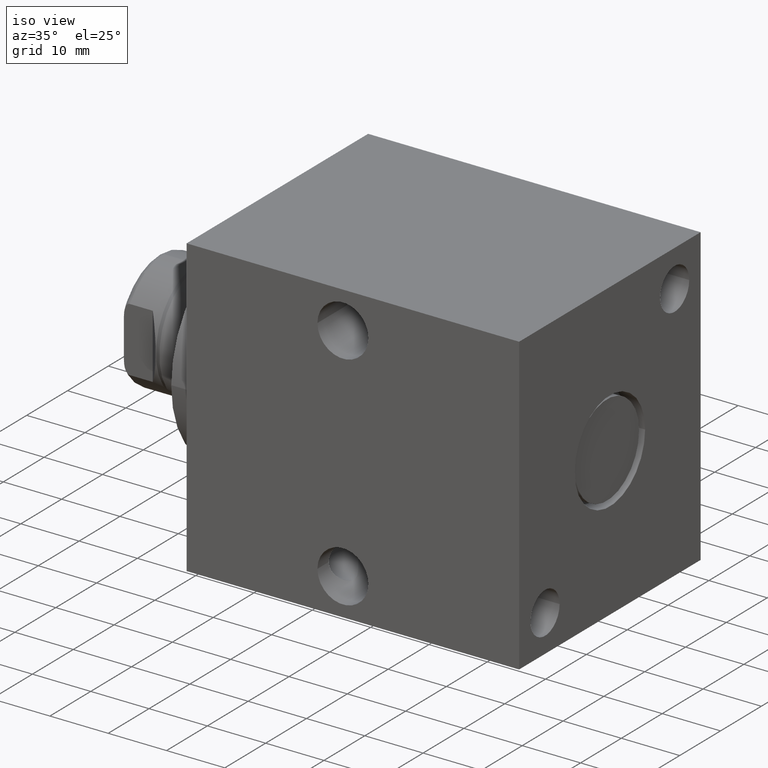
[diagram: clean part render]
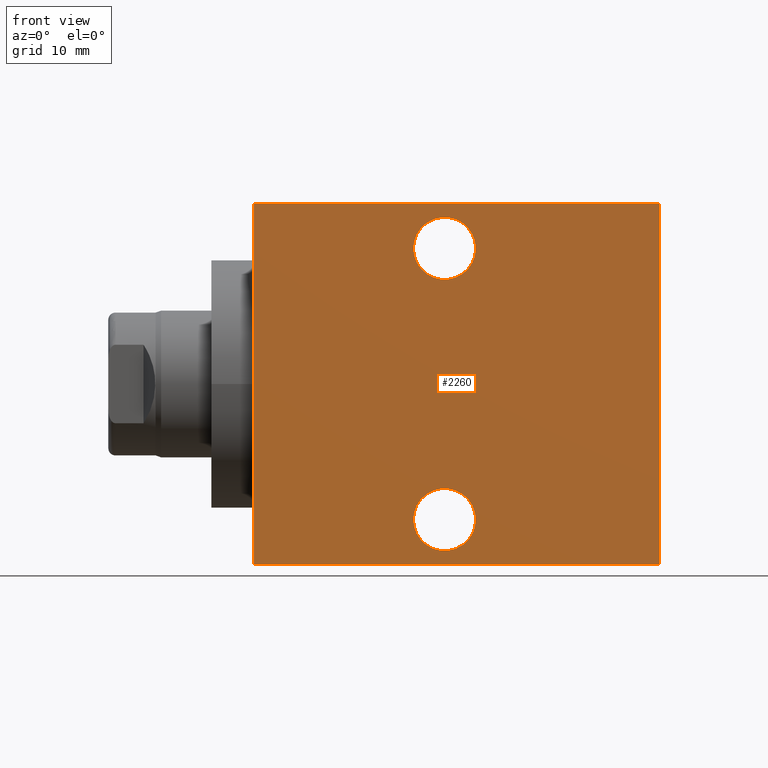
[diagram: tour spotlight — one face highlighted and labeled with its STEP entity id]
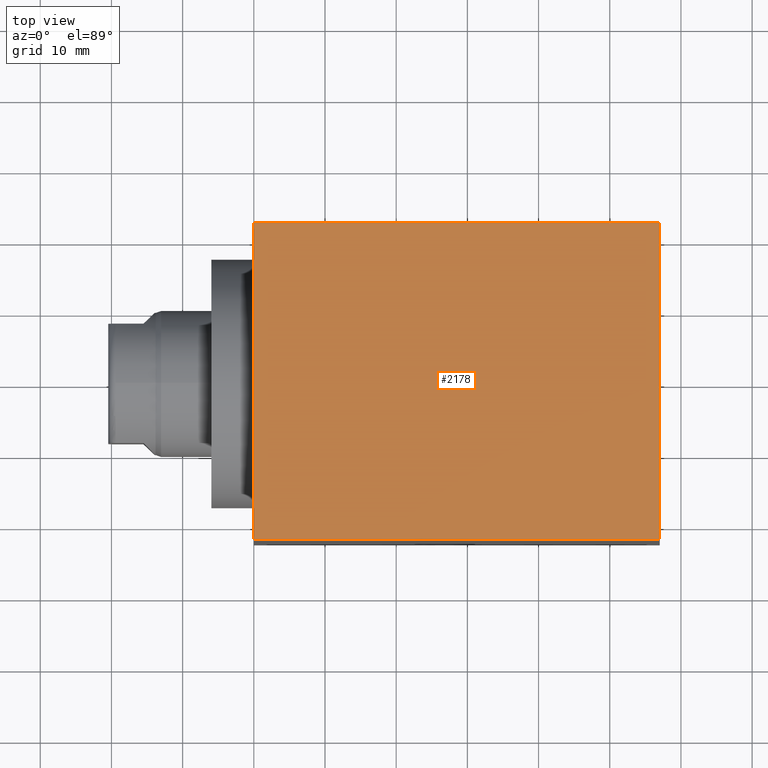
[diagram: tour spotlight — one face highlighted and labeled with its STEP entity id]
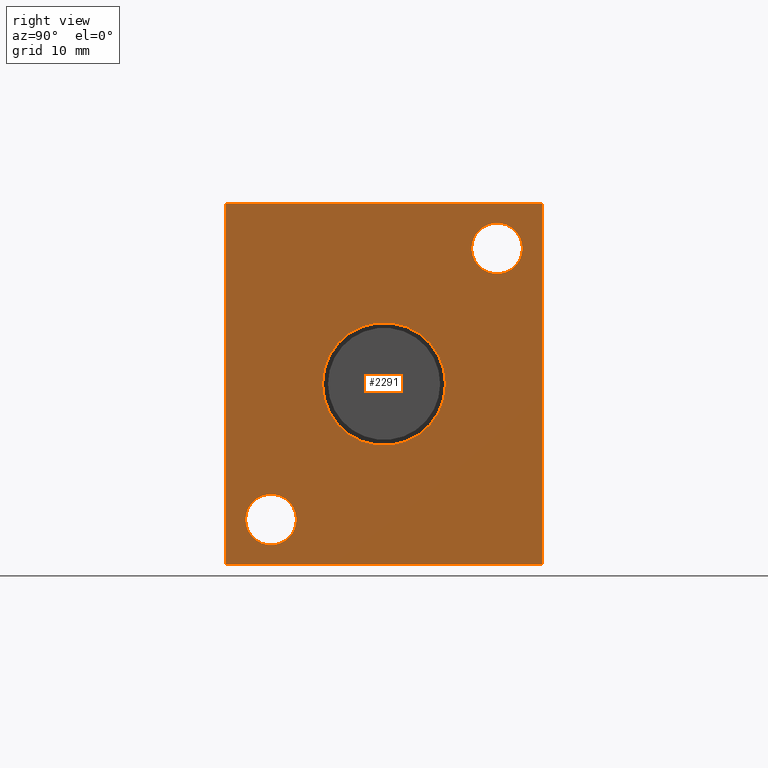
[diagram: tour spotlight — one face highlighted and labeled with its STEP entity id]
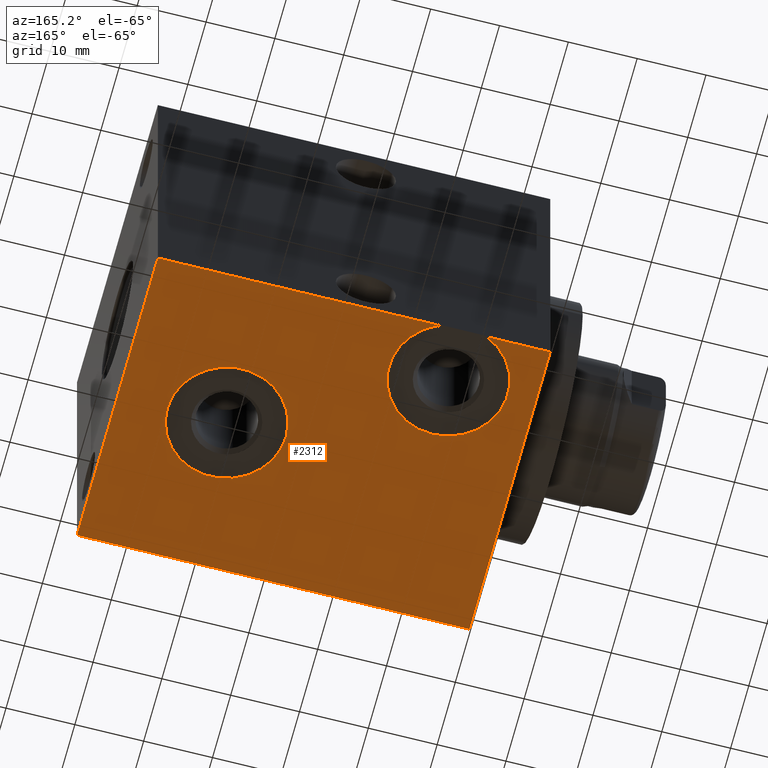
[diagram: tour spotlight — one face highlighted and labeled with its STEP entity id]
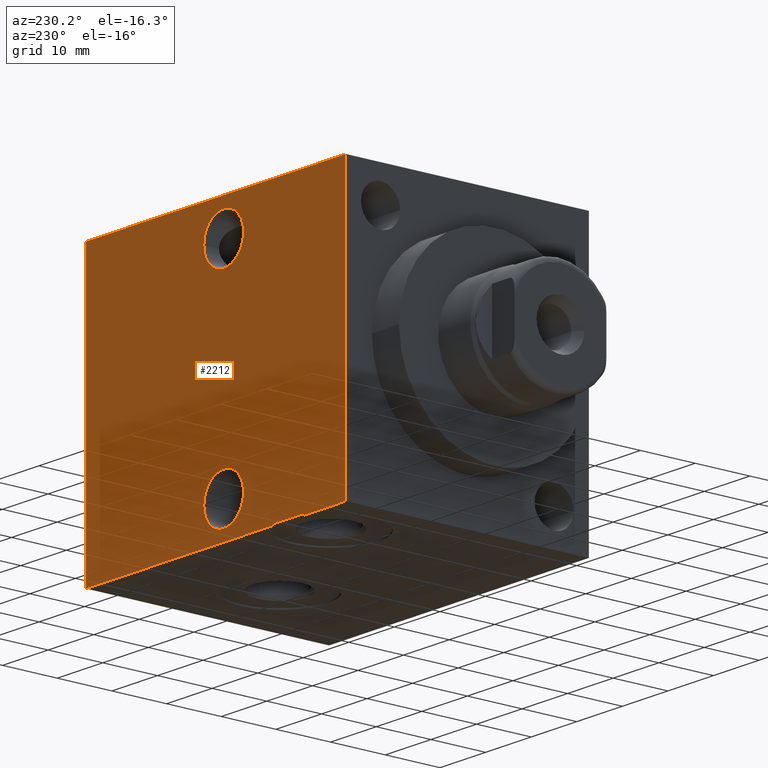
[diagram: tour spotlight — one face highlighted and labeled with its STEP entity id]
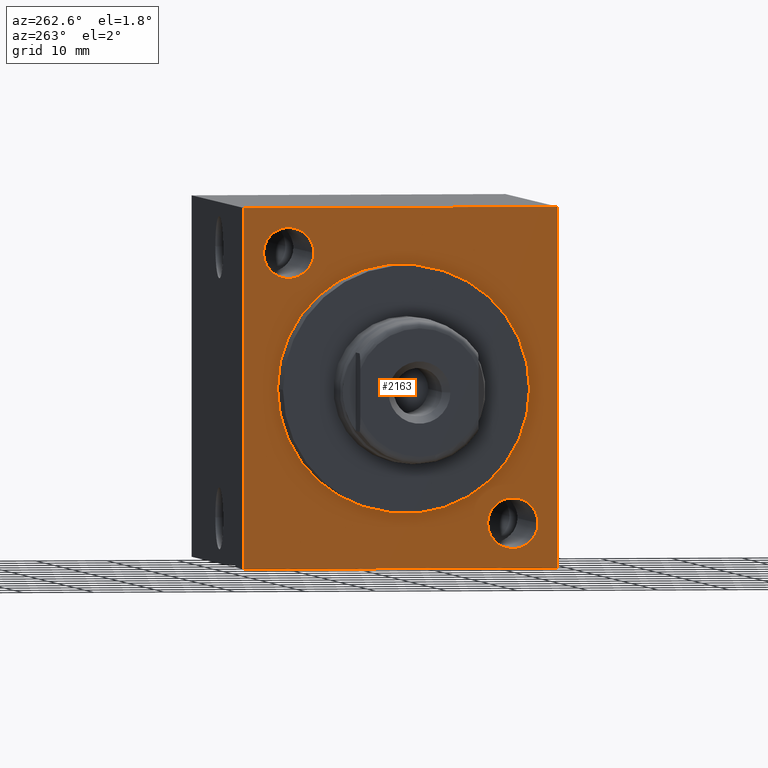
[diagram: tour spotlight — one face highlighted and labeled with its STEP entity id]
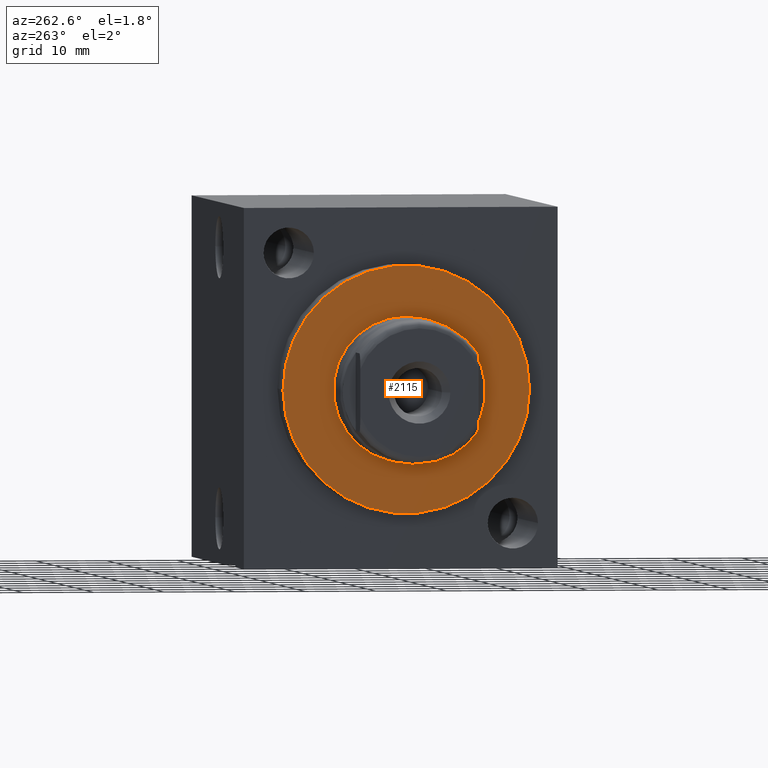
[diagram: tour spotlight — one face highlighted and labeled with its STEP entity id]
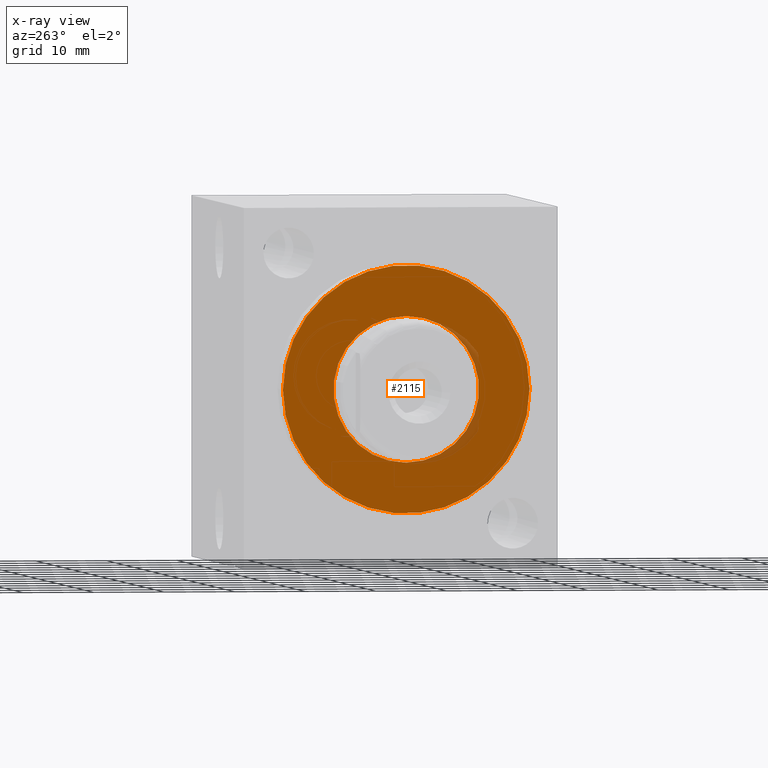
[diagram: x-ray of the same camera — body ghosted, this tour face saturated]
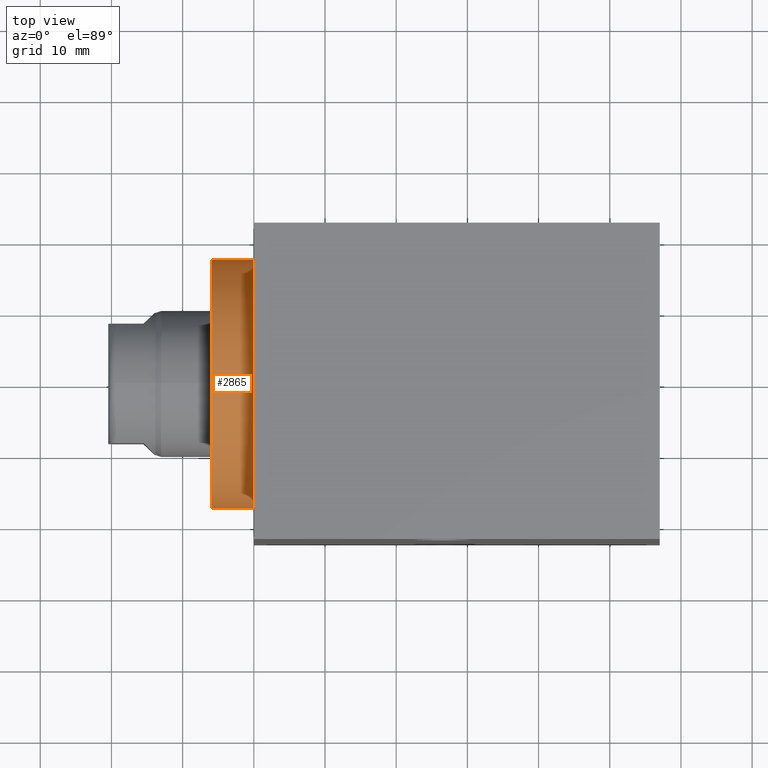
[diagram: tour spotlight — one face highlighted and labeled with its STEP entity id]
A machine part: a face-by-face anatomy tour. The part has 75 B-rep faces; the first image is the clean iso view, then the 8 largest visible faces are spotlighted one at a time (largest first), each with its STEP entity span.

Face 1 — front view, entity #2260. In plain terms, the highlighted planar face has unit normal (0, -1, 0).
Definition (entity closure, byte-faithful):
#506=DIRECTION('',(0.E0,0.E0,-1.E0));
#507=VECTOR('',#506,5.08E1);
#508=CARTESIAN_POINT('',(0.E0,-2.2225E1,2.54E1));
#509=LINE('',#508,#507);
#663=DIRECTION('',(1.E0,0.E0,0.E0));
#664=VECTOR('',#663,5.7023E1);
#665=CARTESIAN_POINT('',(0.E0,-2.2225E1,2.54E1));
#666=LINE('',#665,#664);
#670=CARTESIAN_POINT('',(2.6797E1,-2.2225E1,1.905E1));
#671=DIRECTION('',(0.E0,-1.E0,0.E0));
#672=DIRECTION('',(1.E0,0.E0,0.E0));
#673=AXIS2_PLACEMENT_3D('',#670,#671,#672);
#678=CARTESIAN_POINT('',(2.6797E1,-2.2225E1,1.905E1));
#679=DIRECTION('',(0.E0,-1.E0,0.E0));
#680=DIRECTION('',(-1.E0,0.E0,0.E0));
#681=AXIS2_PLACEMENT_3D('',#678,#679,#680);
#686=CARTESIAN_POINT('',(2.6797E1,-2.2225E1,-1.905E1));
#687=DIRECTION('',(0.E0,-1.E0,0.E0));
#688=DIRECTION('',(1.E0,0.E0,0.E0));
#689=AXIS2_PLACEMENT_3D('',#686,#687,#688);
#694=CARTESIAN_POINT('',(2.6797E1,-2.2225E1,-1.905E1));
#695=DIRECTION('',(0.E0,-1.E0,0.E0));
#696=DIRECTION('',(-1.E0,0.E0,0.E0));
#697=AXIS2_PLACEMENT_3D('',#694,#695,#696);
#723=DIRECTION('',(0.E0,0.E0,-1.E0));
#724=VECTOR('',#723,5.08E1);
#725=CARTESIAN_POINT('',(5.7023E1,-2.2225E1,2.54E1));
#726=LINE('',#725,#724);
#778=DIRECTION('',(1.E0,0.E0,0.E0));
#779=VECTOR('',#778,5.7023E1);
#780=CARTESIAN_POINT('',(0.E0,-2.2225E1,-2.54E1));
#781=LINE('',#780,#779);
#1433=CARTESIAN_POINT('',(0.E0,-2.2225E1,2.54E1));
#1435=VERTEX_POINT('',#1433);
#1436=CARTESIAN_POINT('',(0.E0,-2.2225E1,-2.54E1));
#1437=VERTEX_POINT('',#1436);
#1441=CARTESIAN_POINT('',(5.7023E1,-2.2225E1,2.54E1));
#1443=VERTEX_POINT('',#1441);
#1444=CARTESIAN_POINT('',(5.7023E1,-2.2225E1,-2.54E1));
#1445=VERTEX_POINT('',#1444);
#1456=CARTESIAN_POINT('',(3.1166E1,-2.2225E1,1.905E1));
#1457=CARTESIAN_POINT('',(2.2428E1,-2.2225E1,1.905E1));
#1458=VERTEX_POINT('',#1456);
#1459=VERTEX_POINT('',#1457);
#1468=CARTESIAN_POINT('',(3.1166E1,-2.2225E1,-1.905E1));
#1469=CARTESIAN_POINT('',(2.2428E1,-2.2225E1,-1.905E1));
#1470=VERTEX_POINT('',#1468);
#1471=VERTEX_POINT('',#1469);
#2236=CARTESIAN_POINT('',(0.E0,-2.2225E1,2.54E1));
#2237=DIRECTION('',(0.E0,-1.E0,0.E0));
#2238=DIRECTION('',(0.E0,0.E0,-1.E0));
#2239=AXIS2_PLACEMENT_3D('',#2236,#2237,#2238);
#2240=PLANE('',#2239);
#2241=ORIENTED_EDGE('',*,*,#2138,.F.);
#2242=ORIENTED_EDGE('',*,*,#2174,.T.);
#2244=ORIENTED_EDGE('',*,*,#2243,.T.);
#2246=ORIENTED_EDGE('',*,*,#2245,.F.);
#2247=EDGE_LOOP('',(#2241,#2242,#2244,#2246));
#2248=FACE_OUTER_BOUND('',#2247,.F.);
#2249=ORIENTED_EDGE('',*,*,#2218,.T.);
#2251=ORIENTED_EDGE('',*,*,#2250,.T.);
#2252=EDGE_LOOP('',(#2249,#2251));
#2253=FACE_BOUND('',#2252,.F.);
#2255=ORIENTED_EDGE('',*,*,#2254,.T.);
#2257=ORIENTED_EDGE('',*,*,#2256,.T.);
#2258=EDGE_LOOP('',(#2255,#2257));
#2259=FACE_BOUND('',#2258,.F.);
#2260=ADVANCED_FACE('',(#2248,#2253,#2259),#2240,.T.);
#674=CIRCLE('',#673,4.369E0);
#682=CIRCLE('',#681,4.369E0);
#690=CIRCLE('',#689,4.369E0);
#698=CIRCLE('',#697,4.369E0);
#2138=EDGE_CURVE('',#1435,#1437,#509,.T.);
#2174=EDGE_CURVE('',#1435,#1443,#666,.T.);
#2218=EDGE_CURVE('',#1458,#1459,#674,.T.);
#2243=EDGE_CURVE('',#1443,#1445,#726,.T.);
#2245=EDGE_CURVE('',#1437,#1445,#781,.T.);
#2250=EDGE_CURVE('',#1459,#1458,#682,.T.);
#2254=EDGE_CURVE('',#1470,#1471,#690,.T.);
#2256=EDGE_CURVE('',#1471,#1470,#698,.T.);

Face 2 — top view, entity #2178. In plain terms, the highlighted planar face has unit normal (0, 0, 1).
Definition (entity closure, byte-faithful):
#499=DIRECTION('',(0.E0,-1.E0,0.E0));
#500=VECTOR('',#499,4.445E1);
#501=CARTESIAN_POINT('',(0.E0,2.2225E1,2.54E1));
#502=LINE('',#501,#500);
#575=DIRECTION('',(1.E0,0.E0,0.E0));
#576=VECTOR('',#575,5.7023E1);
#577=CARTESIAN_POINT('',(0.E0,2.2225E1,2.54E1));
#578=LINE('',#577,#576);
#663=DIRECTION('',(1.E0,0.E0,0.E0));
#664=VECTOR('',#663,5.7023E1);
#665=CARTESIAN_POINT('',(0.E0,-2.2225E1,2.54E1));
#666=LINE('',#665,#664);
#702=DIRECTION('',(0.E0,-1.E0,0.E0));
#703=VECTOR('',#702,4.445E1);
#704=CARTESIAN_POINT('',(5.7023E1,2.2225E1,2.54E1));
#705=LINE('',#704,#703);
#1432=CARTESIAN_POINT('',(0.E0,2.2225E1,2.54E1));
#1433=CARTESIAN_POINT('',(0.E0,-2.2225E1,2.54E1));
#1434=VERTEX_POINT('',#1432);
#1435=VERTEX_POINT('',#1433);
#1440=CARTESIAN_POINT('',(5.7023E1,2.2225E1,2.54E1));
#1441=CARTESIAN_POINT('',(5.7023E1,-2.2225E1,2.54E1));
#1442=VERTEX_POINT('',#1440);
#1443=VERTEX_POINT('',#1441);
#2164=CARTESIAN_POINT('',(0.E0,2.2225E1,2.54E1));
#2165=DIRECTION('',(0.E0,0.E0,1.E0));
#2166=DIRECTION('',(0.E0,-1.E0,0.E0));
#2167=AXIS2_PLACEMENT_3D('',#2164,#2165,#2166);
#2168=PLANE('',#2167);
#2169=ORIENTED_EDGE('',*,*,#2136,.F.);
#2171=ORIENTED_EDGE('',*,*,#2170,.T.);
#2173=ORIENTED_EDGE('',*,*,#2172,.T.);
#2175=ORIENTED_EDGE('',*,*,#2174,.F.);
#2176=EDGE_LOOP('',(#2169,#2171,#2173,#2175));
#2177=FACE_OUTER_BOUND('',#2176,.F.);
#2178=ADVANCED_FACE('',(#2177),#2168,.T.);
#2136=EDGE_CURVE('',#1434,#1435,#502,.T.);
#2170=EDGE_CURVE('',#1434,#1442,#578,.T.);
#2172=EDGE_CURVE('',#1442,#1443,#705,.T.);
#2174=EDGE_CURVE('',#1435,#1443,#666,.T.);

Face 3 — right view, entity #2291. In plain terms, the highlighted planar face has unit normal (1, 0, 0).
Definition (entity closure, byte-faithful):
#702=DIRECTION('',(0.E0,-1.E0,0.E0));
#703=VECTOR('',#702,4.445E1);
#704=CARTESIAN_POINT('',(5.7023E1,2.2225E1,2.54E1));
#705=LINE('',#704,#703);
#709=DIRECTION('',(0.E0,0.E0,1.E0));
#710=VECTOR('',#709,5.08E1);
#711=CARTESIAN_POINT('',(5.7023E1,2.2225E1,-2.54E1));
#712=LINE('',#711,#710);
#716=DIRECTION('',(0.E0,1.E0,0.E0));
#717=VECTOR('',#716,4.445E1);
#718=CARTESIAN_POINT('',(5.7023E1,-2.2225E1,-2.54E1));
#719=LINE('',#718,#717);
#723=DIRECTION('',(0.E0,0.E0,-1.E0));
#724=VECTOR('',#723,5.08E1);
#725=CARTESIAN_POINT('',(5.7023E1,-2.2225E1,2.54E1));
#726=LINE('',#725,#724);
#730=CARTESIAN_POINT('',(5.7023E1,1.5875E1,1.905E1));
#731=DIRECTION('',(1.E0,0.E0,0.E0));
#732=DIRECTION('',(0.E0,1.E0,0.E0));
#733=AXIS2_PLACEMENT_3D('',#730,#731,#732);
#738=CARTESIAN_POINT('',(5.7023E1,1.5875E1,1.905E1));
#739=DIRECTION('',(1.E0,0.E0,0.E0));
#740=DIRECTION('',(0.E0,-1.E0,0.E0));
#741=AXIS2_PLACEMENT_3D('',#738,#739,#740);
#746=CARTESIAN_POINT('',(5.7023E1,-1.5875E1,-1.905E1));
#747=DIRECTION('',(1.E0,0.E0,0.E0));
#748=DIRECTION('',(0.E0,1.E0,0.E0));
#749=AXIS2_PLACEMENT_3D('',#746,#747,#748);
#754=CARTESIAN_POINT('',(5.7023E1,-1.5875E1,-1.905E1));
#755=DIRECTION('',(1.E0,0.E0,0.E0));
#756=DIRECTION('',(0.E0,-1.E0,0.E0));
#757=AXIS2_PLACEMENT_3D('',#754,#755,#756);
#762=CARTESIAN_POINT('',(5.7023E1,0.E0,0.E0));
#763=DIRECTION('',(-1.E0,0.E0,0.E0));
#764=DIRECTION('',(0.E0,-1.E0,0.E0));
#765=AXIS2_PLACEMENT_3D('',#762,#763,#764);
#770=CARTESIAN_POINT('',(5.7023E1,0.E0,0.E0));
#771=DIRECTION('',(-1.E0,0.E0,0.E0));
#772=DIRECTION('',(0.E0,1.E0,0.E0));
#773=AXIS2_PLACEMENT_3D('',#770,#771,#772);
#1440=CARTESIAN_POINT('',(5.7023E1,2.2225E1,2.54E1));
#1441=CARTESIAN_POINT('',(5.7023E1,-2.2225E1,2.54E1));
#1442=VERTEX_POINT('',#1440);
#1443=VERTEX_POINT('',#1441);
#1444=CARTESIAN_POINT('',(5.7023E1,-2.2225E1,-2.54E1));
#1445=VERTEX_POINT('',#1444);
#1446=CARTESIAN_POINT('',(5.7023E1,2.2225E1,-2.54E1));
#1447=VERTEX_POINT('',#1446);
#1452=CARTESIAN_POINT('',(5.7023E1,1.94435E1,1.905E1));
#1453=CARTESIAN_POINT('',(5.7023E1,1.23065E1,1.905E1));
#1454=VERTEX_POINT('',#1452);
#1455=VERTEX_POINT('',#1453);
#1532=CARTESIAN_POINT('',(5.7023E1,-8.636E0,0.E0));
#1533=CARTESIAN_POINT('',(5.7023E1,8.636E0,0.E0));
#1534=VERTEX_POINT('',#1532);
#1535=VERTEX_POINT('',#1533);
#1544=CARTESIAN_POINT('',(5.7023E1,-1.23065E1,-1.905E1));
#1545=CARTESIAN_POINT('',(5.7023E1,-1.94435E1,-1.905E1));
#1546=VERTEX_POINT('',#1544);
#1547=VERTEX_POINT('',#1545);
#2261=CARTESIAN_POINT('',(5.7023E1,0.E0,0.E0));
#2262=DIRECTION('',(1.E0,0.E0,0.E0));
#2263=DIRECTION('',(0.E0,0.E0,-1.E0));
#2264=AXIS2_PLACEMENT_3D('',#2261,#2262,#2263);
#2265=PLANE('',#2264);
#2266=ORIENTED_EDGE('',*,*,#2172,.F.);
#2267=ORIENTED_EDGE('',*,*,#2194,.F.);
#2269=ORIENTED_EDGE('',*,*,#2268,.F.);
#2270=ORIENTED_EDGE('',*,*,#2243,.F.);
#2271=EDGE_LOOP('',(#2266,#2267,#2269,#2270));
#2272=FACE_OUTER_BOUND('',#2271,.F.);
#2274=ORIENTED_EDGE('',*,*,#2273,.T.);
#2276=ORIENTED_EDGE('',*,*,#2275,.T.);
#2277=EDGE_LOOP('',(#2274,#2276));
#2278=FACE_BOUND('',#2277,.F.);
#2280=ORIENTED_EDGE('',*,*,#2279,.T.);
#2282=ORIENTED_EDGE('',*,*,#2281,.T.);
#2283=EDGE_LOOP('',(#2280,#2282));
#2284=FACE_BOUND('',#2283,.F.);
#2286=ORIENTED_EDGE('',*,*,#2285,.F.);
#2288=ORIENTED_EDGE('',*,*,#2287,.F.);
#2289=EDGE_LOOP('',(#2286,#2288));
#2290=FACE_BOUND('',#2289,.F.);
#2291=ADVANCED_FACE('',(#2272,#2278,#2284,#2290),#2265,.T.);
#734=CIRCLE('',#733,3.5685E0);
#742=CIRCLE('',#741,3.5685E0);
#750=CIRCLE('',#749,3.5685E0);
#758=CIRCLE('',#757,3.5685E0);
#766=CIRCLE('',#765,8.636E0);
#774=CIRCLE('',#773,8.636E0);
#2172=EDGE_CURVE('',#1442,#1443,#705,.T.);
#2194=EDGE_CURVE('',#1447,#1442,#712,.T.);
#2243=EDGE_CURVE('',#1443,#1445,#726,.T.);
#2268=EDGE_CURVE('',#1445,#1447,#719,.T.);
#2273=EDGE_CURVE('',#1454,#1455,#734,.T.);
#2275=EDGE_CURVE('',#1455,#1454,#742,.T.);
#2279=EDGE_CURVE('',#1546,#1547,#750,.T.);
#2281=EDGE_CURVE('',#1547,#1546,#758,.T.);
#2285=EDGE_CURVE('',#1534,#1535,#766,.T.);
#2287=EDGE_CURVE('',#1535,#1534,#774,.T.);

Face 4 — auxiliary view, entity #2312. In plain terms, the highlighted planar face has unit normal (0, 0, -1).
Definition (entity closure, byte-faithful):
#513=DIRECTION('',(0.E0,1.E0,0.E0));
#514=VECTOR('',#513,4.445E1);
#515=CARTESIAN_POINT('',(0.E0,-2.2225E1,-2.54E1));
#516=LINE('',#515,#514);
#614=DIRECTION('',(1.E0,0.E0,0.E0));
#615=VECTOR('',#614,9.268546809295E0);
#616=CARTESIAN_POINT('',(0.E0,2.2225E1,-2.54E1));
#617=LINE('',#616,#615);
#642=DIRECTION('',(1.E0,0.E0,0.E0));
#643=VECTOR('',#642,4.089154680929E1);
#644=CARTESIAN_POINT('',(1.613145319071E1,2.2225E1,-2.54E1));
#645=LINE('',#644,#643);
#716=DIRECTION('',(0.E0,1.E0,0.E0));
#717=VECTOR('',#716,4.445E1);
#718=CARTESIAN_POINT('',(5.7023E1,-2.2225E1,-2.54E1));
#719=LINE('',#718,#717);
#778=DIRECTION('',(1.E0,0.E0,0.E0));
#779=VECTOR('',#778,5.7023E1);
#780=CARTESIAN_POINT('',(0.E0,-2.2225E1,-2.54E1));
#781=LINE('',#780,#779);
#785=CARTESIAN_POINT('',(4.1148E1,0.E0,-2.54E1));
#786=DIRECTION('',(0.E0,0.E0,1.E0));
#787=DIRECTION('',(1.E0,0.E0,0.E0));
#788=AXIS2_PLACEMENT_3D('',#785,#786,#787);
#793=CARTESIAN_POINT('',(4.1148E1,0.E0,-2.54E1));
#794=DIRECTION('',(0.E0,0.E0,1.E0));
#795=DIRECTION('',(-1.E0,0.E0,0.E0));
#796=AXIS2_PLACEMENT_3D('',#793,#794,#795);
#809=CARTESIAN_POINT('',(1.27E1,1.43E1,-2.54E1));
#810=DIRECTION('',(0.E0,0.E0,1.E0));
#811=DIRECTION('',(-3.973428891507E-1,9.176702176934E-1,0.E0));
#812=AXIS2_PLACEMENT_3D('',#809,#810,#811);
#1436=CARTESIAN_POINT('',(0.E0,-2.2225E1,-2.54E1));
#1437=VERTEX_POINT('',#1436);
#1438=CARTESIAN_POINT('',(0.E0,2.2225E1,-2.54E1));
#1439=VERTEX_POINT('',#1438);
#1444=CARTESIAN_POINT('',(5.7023E1,-2.2225E1,-2.54E1));
#1445=VERTEX_POINT('',#1444);
#1446=CARTESIAN_POINT('',(5.7023E1,2.2225E1,-2.54E1));
#1447=VERTEX_POINT('',#1446);
#1484=CARTESIAN_POINT('',(9.268546809295E0,2.2225E1,-2.54E1));
#1485=VERTEX_POINT('',#1484);
#1486=CARTESIAN_POINT('',(1.613145319071E1,2.2225E1,-2.54E1));
#1487=VERTEX_POINT('',#1486);
#1508=CARTESIAN_POINT('',(4.9784E1,0.E0,-2.54E1));
#1509=CARTESIAN_POINT('',(3.2512E1,0.E0,-2.54E1));
#1510=VERTEX_POINT('',#1508);
#1511=VERTEX_POINT('',#1509);
#2292=CARTESIAN_POINT('',(0.E0,-2.2225E1,-2.54E1));
#2293=DIRECTION('',(0.E0,0.E0,-1.E0));
#2294=DIRECTION('',(0.E0,1.E0,0.E0));
#2295=AXIS2_PLACEMENT_3D('',#2292,#2293,#2294);
#2296=PLANE('',#2295);
#2298=ORIENTED_EDGE('',*,*,#2297,.F.);
#2299=ORIENTED_EDGE('',*,*,#2184,.F.);
#2300=ORIENTED_EDGE('',*,*,#2140,.F.);
#2301=ORIENTED_EDGE('',*,*,#2245,.T.);
#2302=ORIENTED_EDGE('',*,*,#2268,.T.);
#2303=ORIENTED_EDGE('',*,*,#2192,.F.);
#2304=EDGE_LOOP('',(#2298,#2299,#2300,#2301,#2302,#2303));
#2305=FACE_OUTER_BOUND('',#2304,.F.);
#2307=ORIENTED_EDGE('',*,*,#2306,.F.);
#2309=ORIENTED_EDGE('',*,*,#2308,.F.);
#2310=EDGE_LOOP('',(#2307,#2309));
#2311=FACE_BOUND('',#2310,.F.);
#2312=ADVANCED_FACE('',(#2305,#2311),#2296,.T.);
#789=CIRCLE('',#788,8.636E0);
#797=CIRCLE('',#796,8.636E0);
#813=CIRCLE('',#812,8.636E0);
#2140=EDGE_CURVE('',#1437,#1439,#516,.T.);
#2184=EDGE_CURVE('',#1439,#1485,#617,.T.);
#2192=EDGE_CURVE('',#1487,#1447,#645,.T.);
#2245=EDGE_CURVE('',#1437,#1445,#781,.T.);
#2268=EDGE_CURVE('',#1445,#1447,#719,.T.);
#2297=EDGE_CURVE('',#1485,#1487,#813,.T.);
#2306=EDGE_CURVE('',#1510,#1511,#789,.T.);
#2308=EDGE_CURVE('',#1511,#1510,#797,.T.);

Face 5 — auxiliary view, entity #2212. In plain terms, the highlighted planar face has unit normal (0, 1, 0).
Definition (entity closure, byte-faithful):
#520=DIRECTION('',(0.E0,0.E0,1.E0));
#521=VECTOR('',#520,5.08E1);
#522=CARTESIAN_POINT('',(0.E0,2.2225E1,-2.54E1));
#523=LINE('',#522,#521);
#575=DIRECTION('',(1.E0,0.E0,0.E0));
#576=VECTOR('',#575,5.7023E1);
#577=CARTESIAN_POINT('',(0.E0,2.2225E1,2.54E1));
#578=LINE('',#577,#576);
#582=CARTESIAN_POINT('',(2.6797E1,2.2225E1,1.905E1));
#583=DIRECTION('',(0.E0,-1.E0,0.E0));
#584=DIRECTION('',(1.E0,0.E0,0.E0));
#585=AXIS2_PLACEMENT_3D('',#582,#583,#584);
#590=CARTESIAN_POINT('',(2.6797E1,2.2225E1,1.905E1));
#591=DIRECTION('',(0.E0,-1.E0,0.E0));
#592=DIRECTION('',(-1.E0,0.E0,0.E0));
#593=AXIS2_PLACEMENT_3D('',#590,#591,#592);
#598=CARTESIAN_POINT('',(2.6797E1,2.2225E1,-1.905E1));
#599=DIRECTION('',(0.E0,-1.E0,0.E0));
#600=DIRECTION('',(1.E0,0.E0,0.E0));
#601=AXIS2_PLACEMENT_3D('',#598,#599,#600);
#606=CARTESIAN_POINT('',(2.6797E1,2.2225E1,-1.905E1));
#607=DIRECTION('',(0.E0,-1.E0,0.E0));
#608=DIRECTION('',(-1.E0,0.E0,0.E0));
#609=AXIS2_PLACEMENT_3D('',#606,#607,#608);
#614=DIRECTION('',(1.E0,0.E0,0.E0));
#615=VECTOR('',#614,9.268546809295E0);
#616=CARTESIAN_POINT('',(0.E0,2.2225E1,-2.54E1));
#617=LINE('',#616,#615);
#621=DIRECTION('',(0.E0,0.E0,1.E0));
#622=VECTOR('',#621,2.54E-1);
#623=CARTESIAN_POINT('',(9.268546809295E0,2.2225E1,-2.54E1));
#624=LINE('',#623,#622);
#628=DIRECTION('',(1.E0,0.E0,0.E0));
#629=VECTOR('',#628,6.862906381410E0);
#630=CARTESIAN_POINT('',(9.268546809295E0,2.2225E1,-2.5146E1));
#631=LINE('',#630,#629);
#635=DIRECTION('',(0.E0,0.E0,1.E0));
#636=VECTOR('',#635,2.54E-1);
#637=CARTESIAN_POINT('',(1.613145319071E1,2.2225E1,-2.54E1));
#638=LINE('',#637,#636);
#642=DIRECTION('',(1.E0,0.E0,0.E0));
#643=VECTOR('',#642,4.089154680929E1);
#644=CARTESIAN_POINT('',(1.613145319071E1,2.2225E1,-2.54E1));
#645=LINE('',#644,#643);
#709=DIRECTION('',(0.E0,0.E0,1.E0));
#710=VECTOR('',#709,5.08E1);
#711=CARTESIAN_POINT('',(5.7023E1,2.2225E1,-2.54E1));
#712=LINE('',#711,#710);
#1432=CARTESIAN_POINT('',(0.E0,2.2225E1,2.54E1));
#1434=VERTEX_POINT('',#1432);
#1438=CARTESIAN_POINT('',(0.E0,2.2225E1,-2.54E1));
#1439=VERTEX_POINT('',#1438);
#1440=CARTESIAN_POINT('',(5.7023E1,2.2225E1,2.54E1));
#1442=VERTEX_POINT('',#1440);
#1446=CARTESIAN_POINT('',(5.7023E1,2.2225E1,-2.54E1));
#1447=VERTEX_POINT('',#1446);
#1460=CARTESIAN_POINT('',(3.1166E1,2.2225E1,1.905E1));
#1461=CARTESIAN_POINT('',(2.2428E1,2.2225E1,1.905E1));
#1462=VERTEX_POINT('',#1460);
#1463=VERTEX_POINT('',#1461);
#1472=CARTESIAN_POINT('',(3.1166E1,2.2225E1,-1.905E1));
#1473=CARTESIAN_POINT('',(2.2428E1,2.2225E1,-1.905E1));
#1474=VERTEX_POINT('',#1472);
#1475=VERTEX_POINT('',#1473);
#1484=CARTESIAN_POINT('',(9.268546809295E0,2.2225E1,-2.54E1));
#1485=VERTEX_POINT('',#1484);
#1486=CARTESIAN_POINT('',(1.613145319071E1,2.2225E1,-2.54E1));
#1487=VERTEX_POINT('',#1486);
#1536=CARTESIAN_POINT('',(9.268546809295E0,2.2225E1,-2.5146E1));
#1537=CARTESIAN_POINT('',(1.613145319071E1,2.2225E1,-2.5146E1));
#1538=VERTEX_POINT('',#1536);
#1539=VERTEX_POINT('',#1537);
#2179=CARTESIAN_POINT('',(0.E0,2.2225E1,-2.54E1));
#2180=DIRECTION('',(0.E0,1.E0,0.E0));
#2181=DIRECTION('',(0.E0,0.E0,1.E0));
#2182=AXIS2_PLACEMENT_3D('',#2179,#2180,#2181);
#2183=PLANE('',#2182);
#2185=ORIENTED_EDGE('',*,*,#2184,.T.);
#2187=ORIENTED_EDGE('',*,*,#2186,.T.);
#2189=ORIENTED_EDGE('',*,*,#2188,.T.);
#2191=ORIENTED_EDGE('',*,*,#2190,.F.);
#2193=ORIENTED_EDGE('',*,*,#2192,.T.);
#2195=ORIENTED_EDGE('',*,*,#2194,.T.);
#2196=ORIENTED_EDGE('',*,*,#2170,.F.);
#2197=ORIENTED_EDGE('',*,*,#2142,.F.);
#2198=EDGE_LOOP('',(#2185,#2187,#2189,#2191,#2193,#2195,#2196,#2197));
#2199=FACE_OUTER_BOUND('',#2198,.F.);
#2201=ORIENTED_EDGE('',*,*,#2200,.F.);
#2203=ORIENTED_EDGE('',*,*,#2202,.F.);
#2204=EDGE_LOOP('',(#2201,#2203));
#2205=FACE_BOUND('',#2204,.F.);
#2207=ORIENTED_EDGE('',*,*,#2206,.F.);
#2209=ORIENTED_EDGE('',*,*,#2208,.F.);
#2210=EDGE_LOOP('',(#2207,#2209));
#2211=FACE_BOUND('',#2210,.F.);
#2212=ADVANCED_FACE('',(#2199,#2205,#2211),#2183,.T.);
#586=CIRCLE('',#585,4.369E0);
#594=CIRCLE('',#593,4.369E0);
#602=CIRCLE('',#601,4.369E0);
#610=CIRCLE('',#609,4.369E0);
#2142=EDGE_CURVE('',#1439,#1434,#523,.T.);
#2170=EDGE_CURVE('',#1434,#1442,#578,.T.);
#2184=EDGE_CURVE('',#1439,#1485,#617,.T.);
#2186=EDGE_CURVE('',#1485,#1538,#624,.T.);
#2188=EDGE_CURVE('',#1538,#1539,#631,.T.);
#2190=EDGE_CURVE('',#1487,#1539,#638,.T.);
#2192=EDGE_CURVE('',#1487,#1447,#645,.T.);
#2194=EDGE_CURVE('',#1447,#1442,#712,.T.);
#2200=EDGE_CURVE('',#1462,#1463,#586,.T.);
#2202=EDGE_CURVE('',#1463,#1462,#594,.T.);
#2206=EDGE_CURVE('',#1474,#1475,#602,.T.);
#2208=EDGE_CURVE('',#1475,#1474,#610,.T.);

Face 6 — auxiliary view, entity #2163. In plain terms, the highlighted planar face has unit normal (1, 0, 0).
Definition (entity closure, byte-faithful):
#499=DIRECTION('',(0.E0,-1.E0,0.E0));
#500=VECTOR('',#499,4.445E1);
#501=CARTESIAN_POINT('',(0.E0,2.2225E1,2.54E1));
#502=LINE('',#501,#500);
#506=DIRECTION('',(0.E0,0.E0,-1.E0));
#507=VECTOR('',#506,5.08E1);
#508=CARTESIAN_POINT('',(0.E0,-2.2225E1,2.54E1));
#509=LINE('',#508,#507);
#513=DIRECTION('',(0.E0,1.E0,0.E0));
#514=VECTOR('',#513,4.445E1);
#515=CARTESIAN_POINT('',(0.E0,-2.2225E1,-2.54E1));
#516=LINE('',#515,#514);
#520=DIRECTION('',(0.E0,0.E0,1.E0));
#521=VECTOR('',#520,5.08E1);
#522=CARTESIAN_POINT('',(0.E0,2.2225E1,-2.54E1));
#523=LINE('',#522,#521);
#527=CARTESIAN_POINT('',(0.E0,1.5875E1,1.905E1));
#528=DIRECTION('',(1.E0,0.E0,0.E0));
#529=DIRECTION('',(0.E0,1.E0,0.E0));
#530=AXIS2_PLACEMENT_3D('',#527,#528,#529);
#535=CARTESIAN_POINT('',(0.E0,1.5875E1,1.905E1));
#536=DIRECTION('',(1.E0,0.E0,0.E0));
#537=DIRECTION('',(0.E0,-1.E0,0.E0));
#538=AXIS2_PLACEMENT_3D('',#535,#536,#537);
#543=CARTESIAN_POINT('',(0.E0,-1.5875E1,-1.905E1));
#544=DIRECTION('',(1.E0,0.E0,0.E0));
#545=DIRECTION('',(0.E0,1.E0,0.E0));
#546=AXIS2_PLACEMENT_3D('',#543,#544,#545);
#551=CARTESIAN_POINT('',(0.E0,-1.5875E1,-1.905E1));
#552=DIRECTION('',(1.E0,0.E0,0.E0));
#553=DIRECTION('',(0.E0,-1.E0,0.E0));
#554=AXIS2_PLACEMENT_3D('',#551,#552,#553);
#559=CARTESIAN_POINT('',(0.E0,0.E0,0.E0));
#560=DIRECTION('',(-1.E0,0.E0,0.E0));
#561=DIRECTION('',(0.E0,1.E0,0.E0));
#562=AXIS2_PLACEMENT_3D('',#559,#560,#561);
#567=CARTESIAN_POINT('',(0.E0,0.E0,0.E0));
#568=DIRECTION('',(-1.E0,0.E0,0.E0));
#569=DIRECTION('',(0.E0,-1.E0,0.E0));
#570=AXIS2_PLACEMENT_3D('',#567,#568,#569);
#1432=CARTESIAN_POINT('',(0.E0,2.2225E1,2.54E1));
#1433=CARTESIAN_POINT('',(0.E0,-2.2225E1,2.54E1));
#1434=VERTEX_POINT('',#1432);
#1435=VERTEX_POINT('',#1433);
#1436=CARTESIAN_POINT('',(0.E0,-2.2225E1,-2.54E1));
#1437=VERTEX_POINT('',#1436);
#1438=CARTESIAN_POINT('',(0.E0,2.2225E1,-2.54E1));
#1439=VERTEX_POINT('',#1438);
#1448=CARTESIAN_POINT('',(0.E0,1.94435E1,1.905E1));
#1449=CARTESIAN_POINT('',(0.E0,1.23065E1,1.905E1));
#1450=VERTEX_POINT('',#1448);
#1451=VERTEX_POINT('',#1449);
#1540=CARTESIAN_POINT('',(0.E0,-1.23065E1,-1.905E1));
#1541=CARTESIAN_POINT('',(0.E0,-1.94435E1,-1.905E1));
#1542=VERTEX_POINT('',#1540);
#1543=VERTEX_POINT('',#1541);
#1552=CARTESIAN_POINT('',(0.E0,1.74625E1,0.E0));
#1553=CARTESIAN_POINT('',(0.E0,-1.74625E1,0.E0));
#1554=VERTEX_POINT('',#1552);
#1555=VERTEX_POINT('',#1553);
#2131=CARTESIAN_POINT('',(0.E0,0.E0,0.E0));
#2132=DIRECTION('',(1.E0,0.E0,0.E0));
#2133=DIRECTION('',(0.E0,0.E0,-1.E0));
#2134=AXIS2_PLACEMENT_3D('',#2131,#2132,#2133);
#2135=PLANE('',#2134);
#2137=ORIENTED_EDGE('',*,*,#2136,.T.);
#2139=ORIENTED_EDGE('',*,*,#2138,.T.);
#2141=ORIENTED_EDGE('',*,*,#2140,.T.);
#2143=ORIENTED_EDGE('',*,*,#2142,.T.);
#2144=EDGE_LOOP('',(#2137,#2139,#2141,#2143));
#2145=FACE_OUTER_BOUND('',#2144,.F.);
#2147=ORIENTED_EDGE('',*,*,#2146,.F.);
#2149=ORIENTED_EDGE('',*,*,#2148,.F.);
#2150=EDGE_LOOP('',(#2147,#2149));
#2151=FACE_BOUND('',#2150,.F.);
#2153=ORIENTED_EDGE('',*,*,#2152,.F.);
#2155=ORIENTED_EDGE('',*,*,#2154,.F.);
#2156=EDGE_LOOP('',(#2153,#2155));
#2157=FACE_BOUND('',#2156,.F.);
#2158=ORIENTED_EDGE('',*,*,#2121,.T.);
#2160=ORIENTED_EDGE('',*,*,#2159,.T.);
#2161=EDGE_LOOP('',(#2158,#2160));
#2162=FACE_BOUND('',#2161,.F.);
#2163=ADVANCED_FACE('',(#2145,#2151,#2157,#2162),#2135,.F.);
#531=CIRCLE('',#530,3.5685E0);
#539=CIRCLE('',#538,3.5685E0);
#547=CIRCLE('',#546,3.5685E0);
#555=CIRCLE('',#554,3.5685E0);
#563=CIRCLE('',#562,1.74625E1);
#571=CIRCLE('',#570,1.74625E1);
#2121=EDGE_CURVE('',#1554,#1555,#563,.T.);
#2136=EDGE_CURVE('',#1434,#1435,#502,.T.);
#2138=EDGE_CURVE('',#1435,#1437,#509,.T.);
#2140=EDGE_CURVE('',#1437,#1439,#516,.T.);
#2142=EDGE_CURVE('',#1439,#1434,#523,.T.);
#2146=EDGE_CURVE('',#1450,#1451,#531,.T.);
#2148=EDGE_CURVE('',#1451,#1450,#539,.T.);
#2152=EDGE_CURVE('',#1542,#1543,#547,.T.);
#2154=EDGE_CURVE('',#1543,#1542,#555,.T.);
#2159=EDGE_CURVE('',#1555,#1554,#571,.T.);

Face 7 — auxiliary view, entity #2115. An x-ray twin of the same camera follows (body ghosted, this face saturated) — the face is partly hidden behind the body. In plain terms, the highlighted planar face has unit normal (-1, 0, 0).
Definition (entity closure, byte-faithful):
#460=CARTESIAN_POINT('',(-5.969E0,0.E0,0.E0));
#461=DIRECTION('',(-1.E0,0.E0,0.E0));
#462=DIRECTION('',(0.E0,1.E0,0.E0));
#463=AXIS2_PLACEMENT_3D('',#460,#461,#462);
#468=CARTESIAN_POINT('',(-5.969E0,0.E0,0.E0));
#469=DIRECTION('',(-1.E0,0.E0,0.E0));
#470=DIRECTION('',(0.E0,-1.E0,0.E0));
#471=AXIS2_PLACEMENT_3D('',#468,#469,#470);
#476=CARTESIAN_POINT('',(-5.969E0,0.E0,0.E0));
#477=DIRECTION('',(-1.E0,0.E0,0.E0));
#478=DIRECTION('',(0.E0,0.E0,-1.E0));
#479=AXIS2_PLACEMENT_3D('',#476,#477,#478);
#484=CARTESIAN_POINT('',(-5.969E0,0.E0,0.E0));
#485=DIRECTION('',(-1.E0,0.E0,0.E0));
#486=DIRECTION('',(0.E0,0.E0,1.E0));
#487=AXIS2_PLACEMENT_3D('',#484,#485,#486);
#1548=CARTESIAN_POINT('',(-5.969E0,1.74625E1,0.E0));
#1549=CARTESIAN_POINT('',(-5.969E0,-1.74625E1,0.E0));
#1550=VERTEX_POINT('',#1548);
#1551=VERTEX_POINT('',#1549);
#1556=CARTESIAN_POINT('',(-5.969E0,0.E0,-1.030605E1));
#1557=CARTESIAN_POINT('',(-5.969E0,0.E0,1.030605E1));
#1558=VERTEX_POINT('',#1556);
#1559=VERTEX_POINT('',#1557);
#2100=CARTESIAN_POINT('',(-5.969E0,0.E0,0.E0));
#2101=DIRECTION('',(-1.E0,0.E0,0.E0));
#2102=DIRECTION('',(0.E0,1.E0,0.E0));
#2103=AXIS2_PLACEMENT_3D('',#2100,#2101,#2102);
#2104=PLANE('',#2103);
#2106=ORIENTED_EDGE('',*,*,#2105,.F.);
#2108=ORIENTED_EDGE('',*,*,#2107,.F.);
#2109=EDGE_LOOP('',(#2106,#2108));
#2110=FACE_OUTER_BOUND('',#2109,.F.);
#2111=ORIENTED_EDGE('',*,*,#2031,.T.);
#2112=ORIENTED_EDGE('',*,*,#2058,.T.);
#2113=EDGE_LOOP('',(#2111,#2112));
#2114=FACE_BOUND('',#2113,.F.);
#2115=ADVANCED_FACE('',(#2110,#2114),#2104,.T.);
#464=CIRCLE('',#463,1.74625E1);
#472=CIRCLE('',#471,1.74625E1);
#480=CIRCLE('',#479,1.030605E1);
#488=CIRCLE('',#487,1.030605E1);
#2031=EDGE_CURVE('',#1558,#1559,#480,.T.);
#2058=EDGE_CURVE('',#1559,#1558,#488,.T.);
#2105=EDGE_CURVE('',#1550,#1551,#464,.T.);
#2107=EDGE_CURVE('',#1551,#1550,#472,.T.);

Face 8 — top view, entity #2865. In plain terms, the highlighted cylindrical surface (partial cylindrical patch) has radius 17.4625 mm, axis along (-1, 0, 0).
Definition (entity closure, byte-faithful):
#468=CARTESIAN_POINT('',(-5.969E0,0.E0,0.E0));
#469=DIRECTION('',(-1.E0,0.E0,0.E0));
#470=DIRECTION('',(0.E0,-1.E0,0.E0));
#471=AXIS2_PLACEMENT_3D('',#468,#469,#470);
#492=DIRECTION('',(-1.E0,0.E0,0.E0));
#493=VECTOR('',#492,5.969E0);
#494=CARTESIAN_POINT('',(0.E0,1.74625E1,0.E0));
#495=LINE('',#494,#493);
#567=CARTESIAN_POINT('',(0.E0,0.E0,0.E0));
#568=DIRECTION('',(-1.E0,0.E0,0.E0));
#569=DIRECTION('',(0.E0,-1.E0,0.E0));
#570=AXIS2_PLACEMENT_3D('',#567,#568,#569);
#1425=DIRECTION('',(-1.E0,0.E0,0.E0));
#1426=VECTOR('',#1425,5.969E0);
#1427=CARTESIAN_POINT('',(0.E0,-1.74625E1,0.E0));
#1428=LINE('',#1427,#1426);
#1548=CARTESIAN_POINT('',(-5.969E0,1.74625E1,0.E0));
#1549=CARTESIAN_POINT('',(-5.969E0,-1.74625E1,0.E0));
#1550=VERTEX_POINT('',#1548);
#1551=VERTEX_POINT('',#1549);
#1552=CARTESIAN_POINT('',(0.E0,1.74625E1,0.E0));
#1553=CARTESIAN_POINT('',(0.E0,-1.74625E1,0.E0));
#1554=VERTEX_POINT('',#1552);
#1555=VERTEX_POINT('',#1553);
#2854=CARTESIAN_POINT('',(0.E0,0.E0,0.E0));
#2855=DIRECTION('',(-1.E0,0.E0,0.E0));
#2856=DIRECTION('',(0.E0,1.E0,0.E0));
#2857=AXIS2_PLACEMENT_3D('',#2854,#2855,#2856);
#2858=CYLINDRICAL_SURFACE('',#2857,1.74625E1);
#2859=ORIENTED_EDGE('',*,*,#2159,.F.);
#2860=ORIENTED_EDGE('',*,*,#2126,.T.);
#2861=ORIENTED_EDGE('',*,*,#2107,.T.);
#2862=ORIENTED_EDGE('',*,*,#2123,.F.);
#2863=EDGE_LOOP('',(#2859,#2860,#2861,#2862));
#2864=FACE_OUTER_BOUND('',#2863,.F.);
#2865=ADVANCED_FACE('',(#2864),#2858,.T.);
#472=CIRCLE('',#471,1.74625E1);
#571=CIRCLE('',#570,1.74625E1);
#2107=EDGE_CURVE('',#1551,#1550,#472,.T.);
#2123=EDGE_CURVE('',#1554,#1550,#495,.T.);
#2126=EDGE_CURVE('',#1555,#1551,#1428,.T.);
#2159=EDGE_CURVE('',#1555,#1554,#571,.T.);